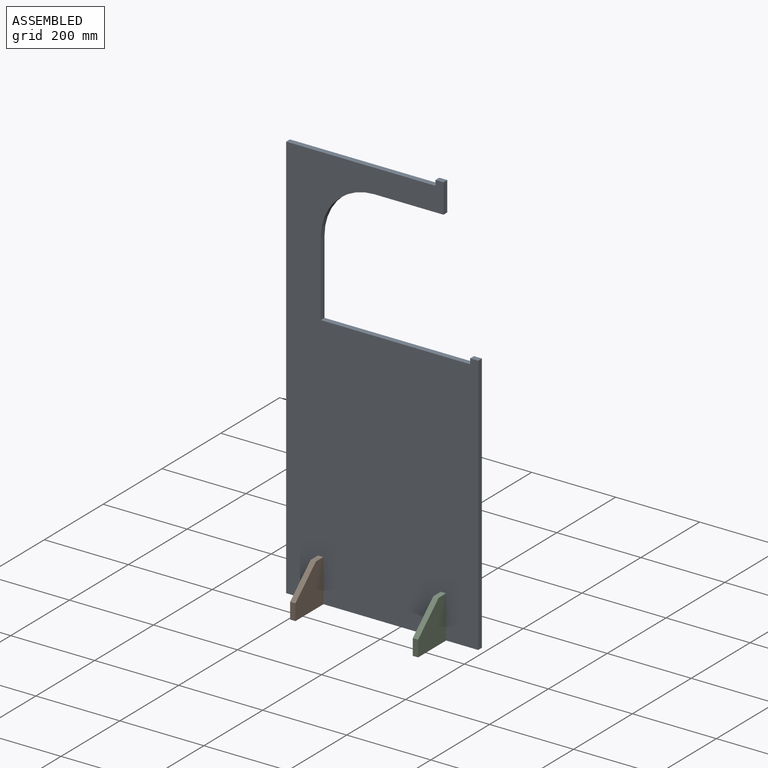
[diagram: assembled view]
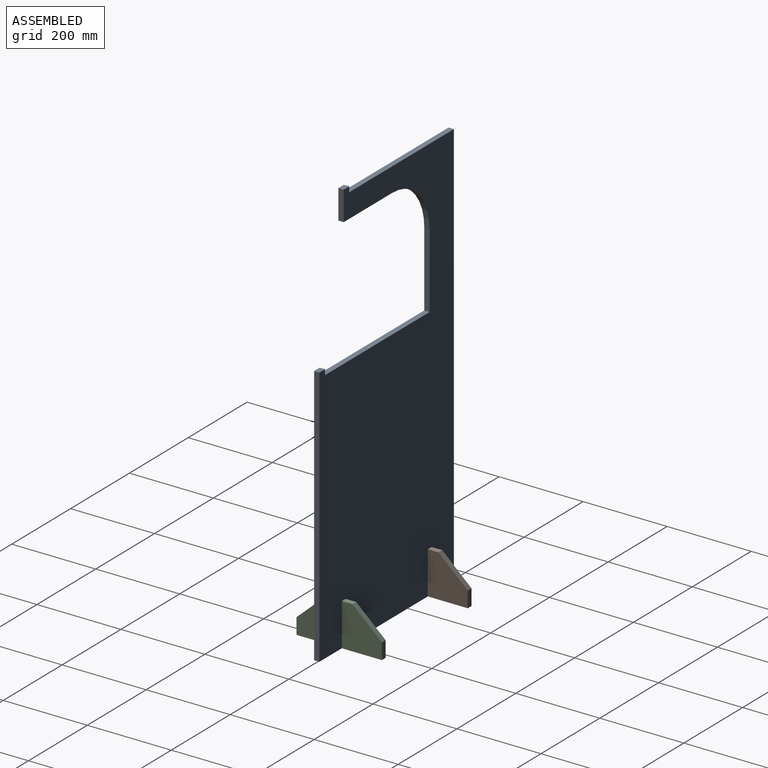
[diagram: assembled view, second angle]
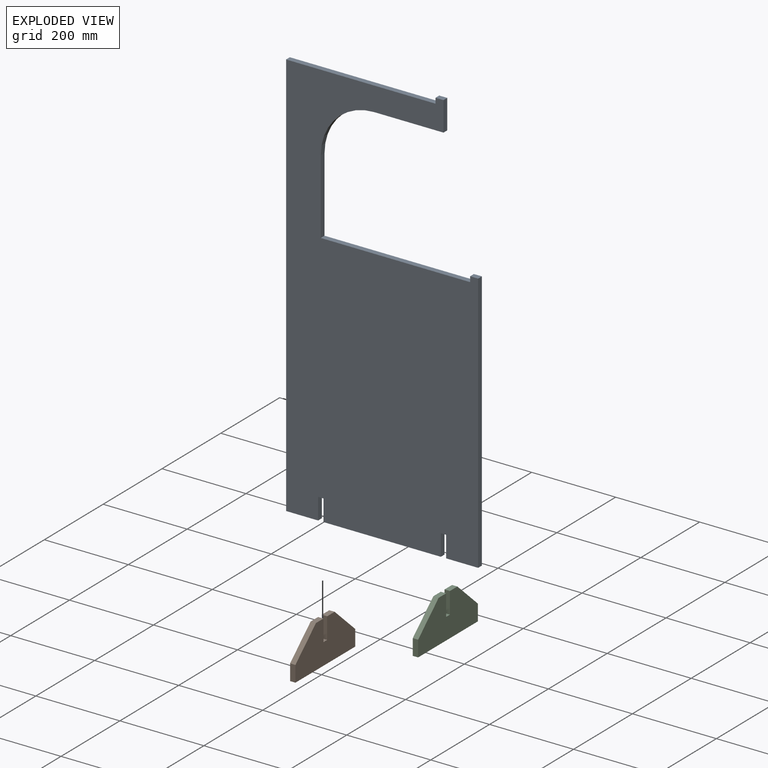
[diagram: exploded view]
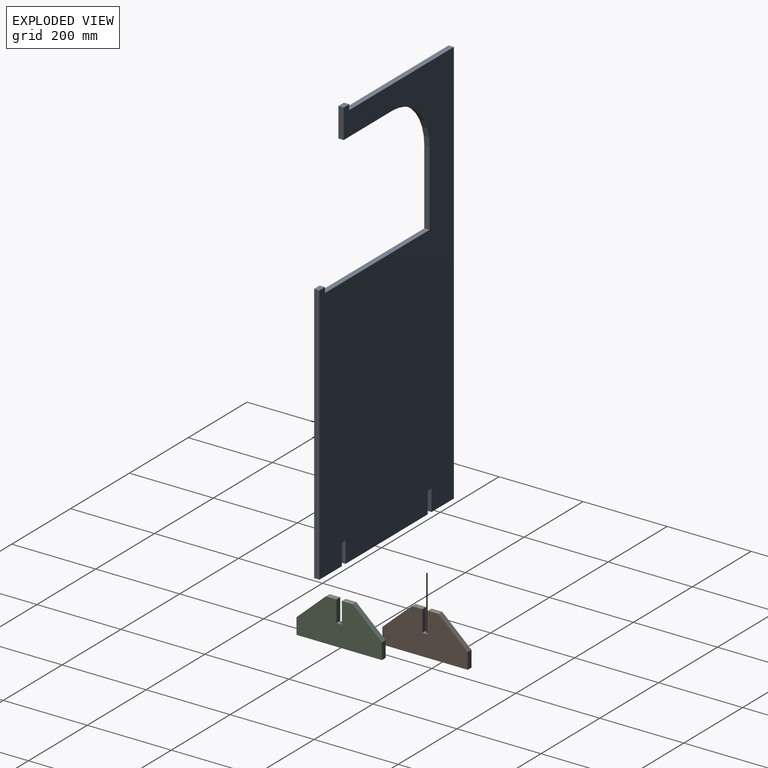
[diagram: exploded view, second angle]
ASSEMBLY  parts=3 mates=2
PART A: 27 faces, bbox 457.2x12.7x984.3 mm
  f0: plane 622.3x12.7mm, normal (1,0,0), area 7903.2mm2, adj f1,f20,f21,f22
  f1: plane 19.05x12.7mm, normal (0,0,1), area 241.9mm2, adj f0,f2,f21,f22
  f2: plane 12.7x12.7mm, normal (-1,0,0), area 161.3mm2, adj f1,f3,f21,f22
  f3: plane 355.6x12.7mm, normal (0,0,1), area 4516.1mm2, adj f2,f4,f21,f22
  f4: plane 177.8x12.7mm, normal (1,0,0), area 2258.1mm2, adj f3,f5,f21,f22
  f5: cylinder r=127mm len=127mm, axis (0,1,0), area 2533.5mm2, adj f4,f6,f21,f22
  f6: plane 165.1x12.7mm, normal (0,0,-1), area 2096.8mm2, adj f5,f7,f21,f22
  f7: plane 69.85x12.7mm, normal (1,0,0), area 887.1mm2, adj f6,f8,f21,f22
  f8: plane 19.05x12.7mm, normal (0,0,1), area 241.9mm2, adj f7,f9,f21,f22
  f9: plane 12.7x12.7mm, normal (-1,0,0), area 161.3mm2, adj f8,f10,f21,f22
  f10: plane 355.6x12.7mm, normal (0,0,1), area 4516.1mm2, adj f9,f11,f21,f22
  f11: plane 971.55x12.7mm, normal (-1,0,0), area 12338.7mm2, adj f10,f12,f21,f22
  f12: plane 76.2x12.7mm, normal (0,0,-1), area 967.7mm2, adj f11,f13,f21,f22
  f13: plane 50.8x12.7mm, normal (1,0,0), area 645.2mm2, adj f12,f14,f21,f22
  f14: plane 12.7x12.7mm, normal (0,0,-1), area 153.4mm2, adj f13,f15,f21,f22,f24
  f15: plane 50.8x12.7mm, normal (-1,0,0), area 645.2mm2, adj f14,f16,f21,f22
  f16: plane 279.4x12.7mm, normal (0,0,-1), area 3548.4mm2, adj f15,f17,f21,f22
  f17: plane 50.8x12.7mm, normal (1,0,0), area 645.2mm2, adj f16,f18,f21,f22
  f18: plane 12.7x12.7mm, normal (0,0,-1), area 153.4mm2, adj f17,f19,f21,f22,f26
  f19: plane 50.8x12.7mm, normal (-1,0,0), area 645.2mm2, adj f18,f20,f21,f22
  f20: plane 76.2x12.7mm, normal (0,0,-1), area 967.7mm2, adj f0,f19,f21,f22
  f21: plane 984.25x457.2mm, normal (0,-1,0), area 327936.5mm2, adj f0,f1,f2,f3,f4,f5,f6,f7
  f22: plane 984.25x457.2mm, normal (0,1,0), area 327936.5mm2, adj f0,f1,f2,f3,f4,f5,f6,f7
  f23: cone r=0mm half-angle=59deg, axis (0,0,-1), area 9.2mm2, adj f24
  f24: cylinder r=1.59mm len=12.7mm, axis (0,0,-1), area 126.7mm2, adj f14,f23
  f25: cone r=0mm half-angle=59deg, axis (0,0,-1), area 9.2mm2, adj f26
  f26: cylinder r=1.59mm len=12.7mm, axis (0,0,-1), area 126.7mm2, adj f18,f25
PART B: 14 faces, bbox 203.2x12.7x101.6 mm
  f0: plane 38.1x12.7mm, normal (-1,0,0), area 483.9mm2, adj f1,f9,f10,f11
  f1: plane 203.2x12.7mm, normal (0,0,-1), area 2580.6mm2, adj f0,f2,f10,f11
  f2: plane 38.1x12.7mm, normal (1,0,0), area 483.9mm2, adj f1,f3,f10,f11
  f3: plane 69.85x63.5mm, normal (0.67,0,0.74), area 1198.9mm2, adj f2,f4,f10,f11
  f4: plane 25.4x12.7mm, normal (0,0,1), area 322.6mm2, adj f3,f5,f10,f11
  f5: plane 50.8x12.7mm, normal (-1,0,0), area 645.2mm2, adj f4,f6,f10,f11
  f6: plane 12.7x12.7mm, normal (0,0,1), area 153.4mm2, adj f5,f7,f10,f11,f13
  f7: plane 50.8x12.7mm, normal (1,0,0), area 645.2mm2, adj f6,f8,f10,f11
  f8: plane 25.4x12.7mm, normal (0,0,1), area 322.6mm2, adj f7,f9,f10,f11
  f9: plane 69.85x63.5mm, normal (-0.67,0,0.74), area 1198.9mm2, adj f0,f8,f10,f11
  f10: plane 203.2x101.6mm, normal (0,-1,0), area 15564.5mm2, adj f0,f1,f2,f3,f4,f5,f6,f7
  f11: plane 203.2x101.6mm, normal (0,1,0), area 15564.5mm2, adj f0,f1,f2,f3,f4,f5,f6,f7
  f12: cone r=0mm half-angle=59deg, axis (0,0,1), area 9.2mm2, adj f13
  f13: cylinder r=1.59mm len=12.7mm, axis (0,0,1), area 126.7mm2, adj f6,f12
PART C: same geometry as B
PLACE A at identity
PLACE B rot(axis=(0,0,1),90deg) t=(-399.18,62.63,-984.58)mm
PLACE C rot(axis=(0,0,1),90deg) t=(-107.08,62.63,-984.58)mm
MATE fastened B.f12 <-> A.f23  axis (0,0,1) through (-392.83,-6.35,-912.45)mm
MATE fastened C.f12 <-> A.f25  axis (0,0,1) through (-100.73,-6.35,-912.45)mm
